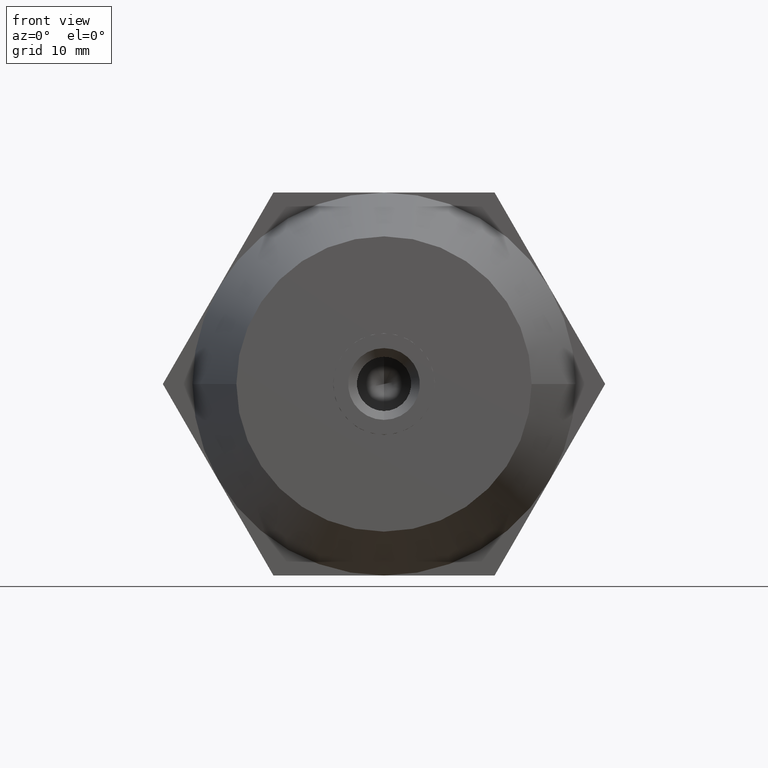
[diagram: clean part render]
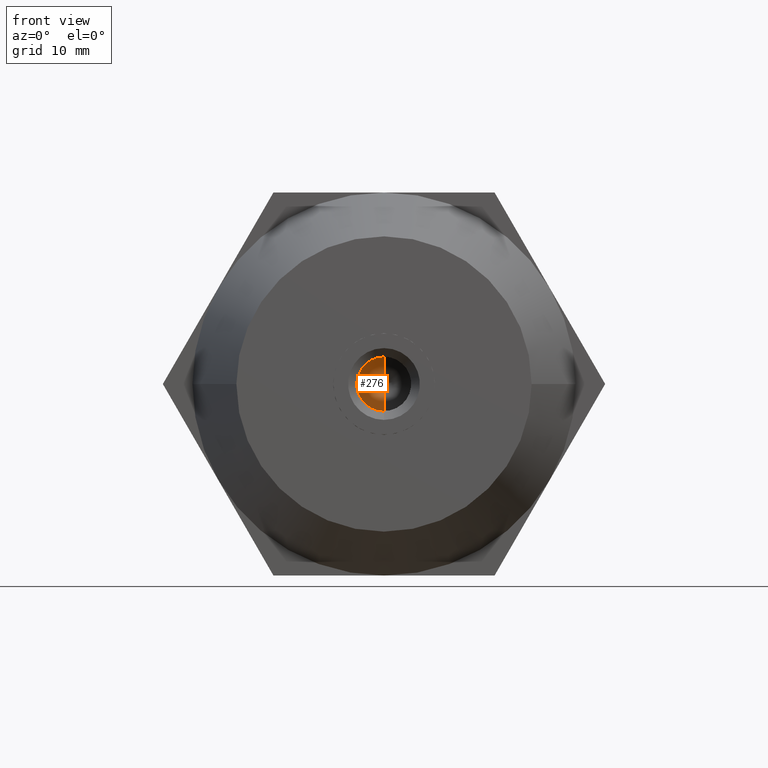
[diagram: same view with one face highlighted and labeled with its STEP entity id]
A machine part, front view. The second image highlights one B-rep face of the part: STEP entity #276.
In plain terms, the highlighted conical surface has half-angle 59 deg.
Its self-contained STEP definition (entity closure, byte-faithful):
#192 = DIRECTION ( 'NONE',  ( 1.049727191138618200E-016, 0.5150380749100549300, -0.8571673007021118900 ) ) ;
#203 = CARTESIAN_POINT ( 'NONE',  ( 0.0000000000000000000, 2.540000000000000000, 0.0000000000000000000 ) ) ;
#245 = ORIENTED_EDGE ( 'NONE', *, *, #2252, .F. ) ;
#276 = ADVANCED_FACE ( 'NONE', ( #1435 ), #681, .F. ) ;
#281 = ORIENTED_EDGE ( 'NONE', *, *, #1141, .T. ) ;
#594 = AXIS2_PLACEMENT_3D ( 'NONE', #1127, #3472, #810 ) ;
#681 = CONICAL_SURFACE ( 'NONE', #594, 3.399999999999999900, 1.029744258676653600 ) ;
#810 = DIRECTION ( 'NONE',  ( 0.0000000000000000000, 0.0000000000000000000, 1.000000000000000000 ) ) ;
#1086 = DIRECTION ( 'NONE',  ( 0.0000000000000000000, 1.000000000000000000, 0.0000000000000000000 ) ) ;
#1127 = CARTESIAN_POINT ( 'NONE',  ( 0.0000000000000000000, 2.540000000000000000, 0.0000000000000000000 ) ) ;
#1141 = EDGE_CURVE ( 'NONE', #2816, #2920, #1524, .T. ) ;
#1262 = CARTESIAN_POINT ( 'NONE',  ( -3.307263046647280300E-015, 0.4970738953062929800, 0.0000000000000000000 ) ) ;
#1321 = VERTEX_POINT ( 'NONE', #1532 ) ;
#1346 = VECTOR ( 'NONE', #192, 999.9999999999998900 ) ;
#1435 = FACE_OUTER_BOUND ( 'NONE', #1877, .T. ) ;
#1524 = LINE ( 'NONE', #2929, #3355 ) ;
#1532 = CARTESIAN_POINT ( 'NONE',  ( 4.163799117101000600E-016, 2.540000000000000000, -3.399999999999999900 ) ) ;
#1877 = EDGE_LOOP ( 'NONE', ( #245, #281, #3416 ) ) ;
#1963 = CARTESIAN_POINT ( 'NONE',  ( 4.163799117101000600E-016, 2.540000000000000000, -3.399999999999999900 ) ) ;
#2018 = DIRECTION ( 'NONE',  ( 0.0000000000000000000, 0.5150380749100549300, 0.8571673007021118900 ) ) ;
#2252 = EDGE_CURVE ( 'NONE', #2816, #1321, #3586, .T. ) ;
#2516 = DIRECTION ( 'NONE',  ( 0.0000000000000000000, 0.0000000000000000000, 1.000000000000000000 ) ) ;
#2816 = VERTEX_POINT ( 'NONE', #1262 ) ;
#2915 = CIRCLE ( 'NONE', #3579, 3.399999999999999900 ) ;
#2920 = VERTEX_POINT ( 'NONE', #3634 ) ;
#2929 = CARTESIAN_POINT ( 'NONE',  ( 0.0000000000000000000, 2.540000000000000000, 3.399999999999999900 ) ) ;
#3355 = VECTOR ( 'NONE', #2018, 999.9999999999998900 ) ;
#3416 = ORIENTED_EDGE ( 'NONE', *, *, #3708, .T. ) ;
#3472 = DIRECTION ( 'NONE',  ( 0.0000000000000000000, 1.000000000000000000, 0.0000000000000000000 ) ) ;
#3579 = AXIS2_PLACEMENT_3D ( 'NONE', #203, #1086, #2516 ) ;
#3586 = LINE ( 'NONE', #1963, #1346 ) ;
#3634 = CARTESIAN_POINT ( 'NONE',  ( 0.0000000000000000000, 2.540000000000000000, 3.399999999999999900 ) ) ;
#3708 = EDGE_CURVE ( 'NONE', #2920, #1321, #2915, .T. ) ;